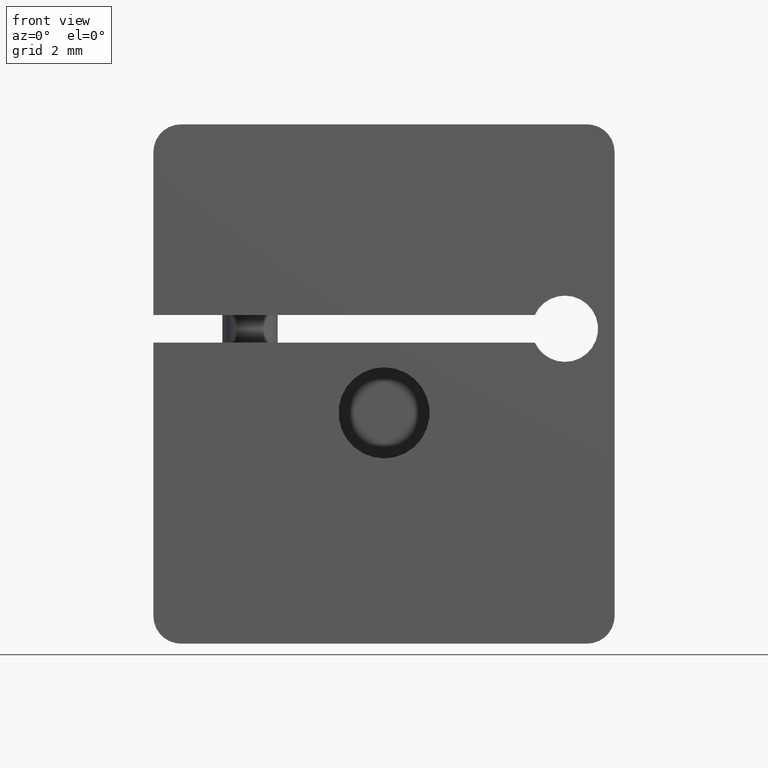
[diagram: clean part render]
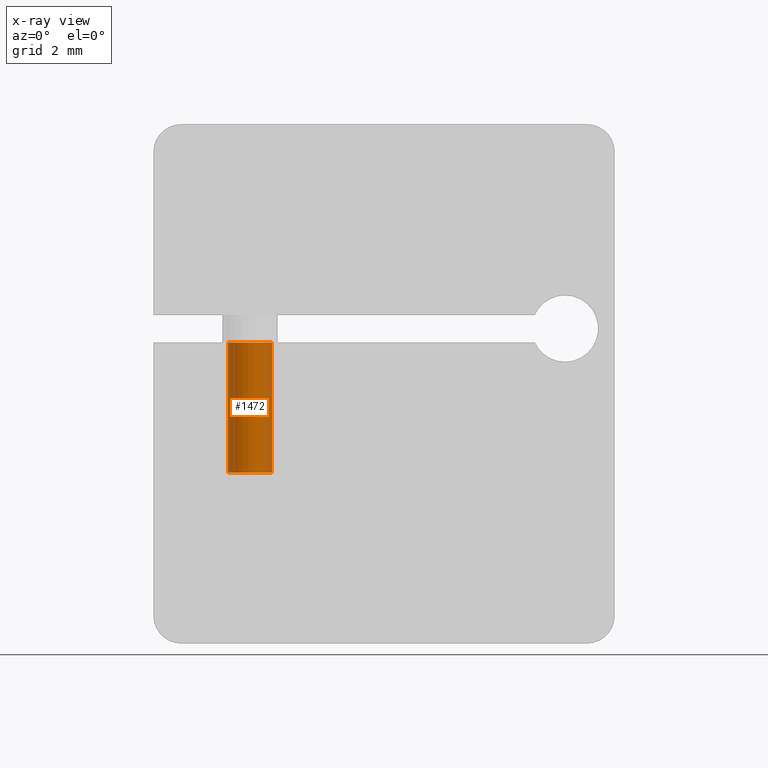
[diagram: x-ray — body ghosted, one internal face saturated and labeled with its STEP entity id]
A machine part, front view, then the same camera in x-ray: the body is ghosted and one INTERNAL B-rep face — a face not visible from any outside direction — is saturated and labeled: STEP entity #1472.
In plain terms, the highlighted cylindrical surface (edge-blend (fillet) strip) has radius 0.8 mm, axis along (0, 0, 1).
Its self-contained STEP definition (entity closure, byte-faithful):
#13 = DIRECTION ( 'NONE',  ( -0.000000000000000000, -0.000000000000000000, 1.000000000000000000 ) ) ;
#31 = ORIENTED_EDGE ( 'NONE', *, *, #1799, .F. ) ;
#51 = AXIS2_PLACEMENT_3D ( 'NONE', #1845, #2770, #597 ) ;
#84 = DIRECTION ( 'NONE',  ( -0.000000000000000000, -0.000000000000000000, 1.000000000000000000 ) ) ;
#150 = VECTOR ( 'NONE', #13, 1000.000000000000000 ) ;
#442 = VERTEX_POINT ( 'NONE', #3021 ) ;
#446 = CARTESIAN_POINT ( 'NONE',  ( -5.649999999999995026, 3.500000000000000000, 1.500000000000003997 ) ) ;
#498 = ORIENTED_EDGE ( 'NONE', *, *, #1193, .T. ) ;
#522 = DIRECTION ( 'NONE',  ( 1.000000000000000000, 0.000000000000000000, 0.000000000000000000 ) ) ;
#545 = AXIS2_PLACEMENT_3D ( 'NONE', #1313, #2208, #522 ) ;
#597 = DIRECTION ( 'NONE',  ( 1.000000000000000000, 0.000000000000000000, 0.000000000000000000 ) ) ;
#680 = CIRCLE ( 'NONE', #1620, 0.7999999999999994893 ) ;
#1020 = LINE ( 'NONE', #2439, #2636 ) ;
#1193 = EDGE_CURVE ( 'NONE', #442, #1303, #1431, .T. ) ;
#1303 = VERTEX_POINT ( 'NONE', #1415 ) ;
#1313 = CARTESIAN_POINT ( 'NONE',  ( -4.849999999999996980, 3.500000000000000000, -3.219311504777949473 ) ) ;
#1415 = CARTESIAN_POINT ( 'NONE',  ( -5.649999999999995914, 3.500000000000000000, 1.500000000000003997 ) ) ;
#1431 = LINE ( 'NONE', #446, #150 ) ;
#1437 = EDGE_CURVE ( 'NONE', #442, #1568, #1446, .T. ) ;
#1446 = CIRCLE ( 'NONE', #545, 0.7999999999999986011 ) ;
#1472 = ADVANCED_FACE ( 'NONE', ( #1955 ), #2924, .F. ) ;
#1514 = VERTEX_POINT ( 'NONE', #2508 ) ;
#1568 = VERTEX_POINT ( 'NONE', #1578 ) ;
#1578 = CARTESIAN_POINT ( 'NONE',  ( -4.049999999999998046, 3.500000000000000000, -3.219311504777949473 ) ) ;
#1620 = AXIS2_PLACEMENT_3D ( 'NONE', #2104, #2839, #3065 ) ;
#1720 = ORIENTED_EDGE ( 'NONE', *, *, #1989, .T. ) ;
#1799 = EDGE_CURVE ( 'NONE', #1568, #1514, #1020, .T. ) ;
#1845 = CARTESIAN_POINT ( 'NONE',  ( -4.849999999999996980, 3.500000000000000000, 1.500000000000003997 ) ) ;
#1955 = FACE_OUTER_BOUND ( 'NONE', #2616, .T. ) ;
#1989 = EDGE_CURVE ( 'NONE', #1303, #1514, #680, .T. ) ;
#2104 = CARTESIAN_POINT ( 'NONE',  ( -4.849999999999996980, 3.500000000000000000, 1.500000000000003997 ) ) ;
#2208 = DIRECTION ( 'NONE',  ( -0.000000000000000000, -0.000000000000000000, 1.000000000000000000 ) ) ;
#2391 = ORIENTED_EDGE ( 'NONE', *, *, #1437, .F. ) ;
#2439 = CARTESIAN_POINT ( 'NONE',  ( -4.049999999999998046, 3.500000000000000000, 1.500000000000003997 ) ) ;
#2508 = CARTESIAN_POINT ( 'NONE',  ( -4.049999999999997158, 3.500000000000000000, 1.500000000000003997 ) ) ;
#2616 = EDGE_LOOP ( 'NONE', ( #2391, #498, #1720, #31 ) ) ;
#2636 = VECTOR ( 'NONE', #84, 1000.000000000000000 ) ;
#2770 = DIRECTION ( 'NONE',  ( -0.000000000000000000, -0.000000000000000000, 1.000000000000000000 ) ) ;
#2839 = DIRECTION ( 'NONE',  ( -0.000000000000000000, -0.000000000000000000, 1.000000000000000000 ) ) ;
#2924 = CYLINDRICAL_SURFACE ( 'NONE', #51, 0.7999999999999986011 ) ;
#3021 = CARTESIAN_POINT ( 'NONE',  ( -5.649999999999995026, 3.500000000000000000, -3.219311504777949473 ) ) ;
#3065 = DIRECTION ( 'NONE',  ( 1.000000000000000000, 0.000000000000000000, 0.000000000000000000 ) ) ;